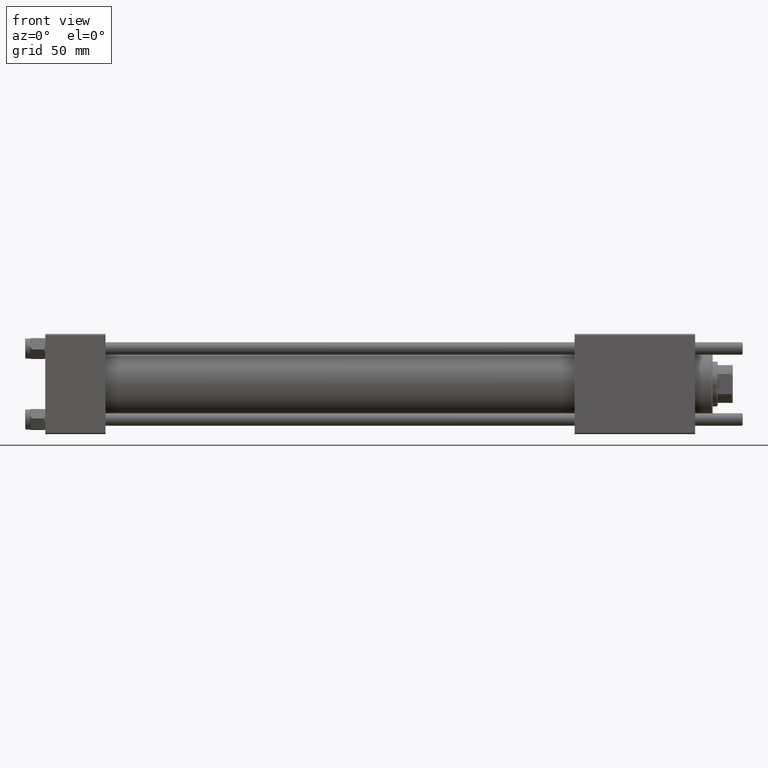
[diagram: clean part render]
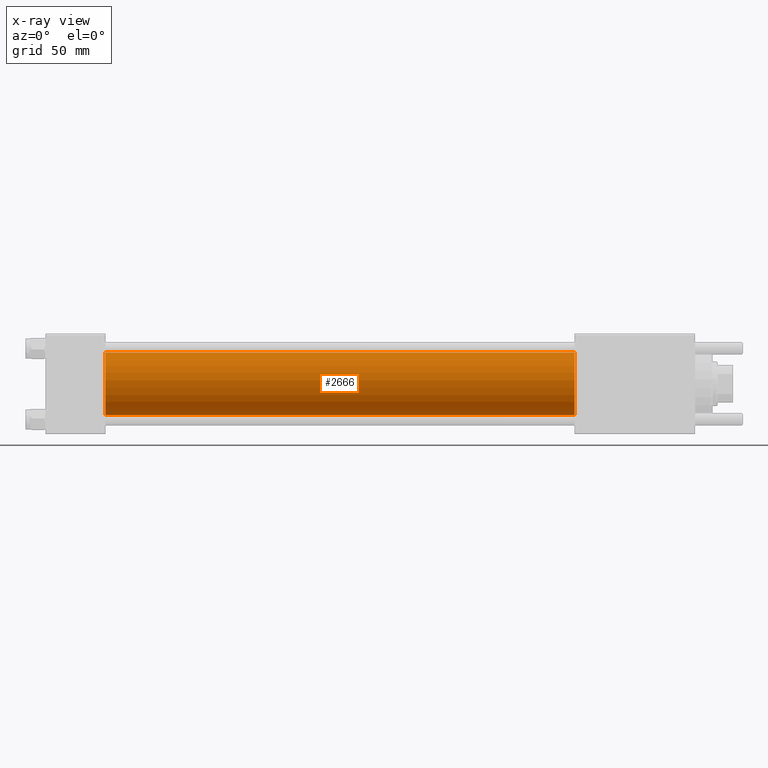
[diagram: x-ray — body ghosted, one internal face saturated and labeled with its STEP entity id]
A machine part, front view, then the same camera in x-ray: the body is ghosted and one INTERNAL B-rep face — a face not visible from any outside direction — is saturated and labeled: STEP entity #2666.
In plain terms, the highlighted cylindrical surface (edge-blend (fillet) strip) has radius 12.5 mm, axis along (-1, -0, -0).
Its self-contained STEP definition (entity closure, byte-faithful):
#1670 = CARTESIAN_POINT ( 'NONE',  ( 24.00000000000000000, -1.071276715031019515E-15, -12.49999999999999645 ) ) ;
#1732 = AXIS2_PLACEMENT_3D ( 'NONE', #11940, #46336, #51197 ) ;
#2666 = ADVANCED_FACE ( 'NONE', ( #22007 ), #14259, .F. ) ;
#3366 = CARTESIAN_POINT ( 'NONE',  ( 211.0000000000000000, -1.071276715031019515E-15, -12.49999999999999645 ) ) ;
#3545 = DIRECTION ( 'NONE',  ( 1.000000000000000000, 0.000000000000000000, 0.000000000000000000 ) ) ;
#5389 = LINE ( 'NONE', #5960, #9498 ) ;
#5960 = CARTESIAN_POINT ( 'NONE',  ( 211.0000000000000000, -2.602085213965210642E-15, 12.49999999999999645 ) ) ;
#9498 = VECTOR ( 'NONE', #19139, 1000.000000000000000 ) ;
#10911 = CIRCLE ( 'NONE', #1732, 12.49999999999999645 ) ;
#11940 = CARTESIAN_POINT ( 'NONE',  ( 24.00000000000000000, -2.602085213965210642E-15, 0.000000000000000000 ) ) ;
#12720 = DIRECTION ( 'NONE',  ( 0.000000000000000000, 0.000000000000000000, -1.000000000000000000 ) ) ;
#13493 = AXIS2_PLACEMENT_3D ( 'NONE', #27753, #52660, #31759 ) ;
#14259 = CYLINDRICAL_SURFACE ( 'NONE', #13493, 12.49999999999999645 ) ;
#19139 = DIRECTION ( 'NONE',  ( -1.000000000000000000, -0.000000000000000000, -0.000000000000000000 ) ) ;
#19602 = VERTEX_POINT ( 'NONE', #54633 ) ;
#22007 = FACE_OUTER_BOUND ( 'NONE', #40674, .T. ) ;
#22036 = CARTESIAN_POINT ( 'NONE',  ( 24.00000000000000000, -2.602085213965210642E-15, 12.49999999999999645 ) ) ;
#22927 = AXIS2_PLACEMENT_3D ( 'NONE', #29666, #3545, #12720 ) ;
#23566 = ORIENTED_EDGE ( 'NONE', *, *, #32090, .T. ) ;
#24831 = ORIENTED_EDGE ( 'NONE', *, *, #48084, .T. ) ;
#27534 = EDGE_CURVE ( 'NONE', #49690, #31952, #10911, .T. ) ;
#27753 = CARTESIAN_POINT ( 'NONE',  ( 211.0000000000000000, -2.602085213965210642E-15, 0.000000000000000000 ) ) ;
#29666 = CARTESIAN_POINT ( 'NONE',  ( 211.0000000000000000, -2.602085213965210642E-15, 0.000000000000000000 ) ) ;
#31759 = DIRECTION ( 'NONE',  ( 0.000000000000000000, 0.000000000000000000, 1.000000000000000000 ) ) ;
#31952 = VERTEX_POINT ( 'NONE', #1670 ) ;
#32090 = EDGE_CURVE ( 'NONE', #19602, #54065, #47652, .T. ) ;
#32855 = ORIENTED_EDGE ( 'NONE', *, *, #48825, .F. ) ;
#40674 = EDGE_LOOP ( 'NONE', ( #23566, #24831, #40725, #32855 ) ) ;
#40725 = ORIENTED_EDGE ( 'NONE', *, *, #27534, .F. ) ;
#41705 = DIRECTION ( 'NONE',  ( -1.000000000000000000, -0.000000000000000000, -0.000000000000000000 ) ) ;
#45449 = CARTESIAN_POINT ( 'NONE',  ( 211.0000000000000000, -1.071276715031019515E-15, -12.49999999999999645 ) ) ;
#46336 = DIRECTION ( 'NONE',  ( 1.000000000000000000, 0.000000000000000000, 0.000000000000000000 ) ) ;
#47652 = CIRCLE ( 'NONE', #22927, 12.49999999999999645 ) ;
#48084 = EDGE_CURVE ( 'NONE', #54065, #31952, #50304, .T. ) ;
#48825 = EDGE_CURVE ( 'NONE', #19602, #49690, #5389, .T. ) ;
#49690 = VERTEX_POINT ( 'NONE', #22036 ) ;
#50304 = LINE ( 'NONE', #45449, #51597 ) ;
#51197 = DIRECTION ( 'NONE',  ( 0.000000000000000000, 0.000000000000000000, -1.000000000000000000 ) ) ;
#51597 = VECTOR ( 'NONE', #41705, 1000.000000000000000 ) ;
#52660 = DIRECTION ( 'NONE',  ( -1.000000000000000000, -0.000000000000000000, -0.000000000000000000 ) ) ;
#54065 = VERTEX_POINT ( 'NONE', #3366 ) ;
#54633 = CARTESIAN_POINT ( 'NONE',  ( 211.0000000000000000, -2.602085213965210642E-15, 12.49999999999999645 ) ) ;